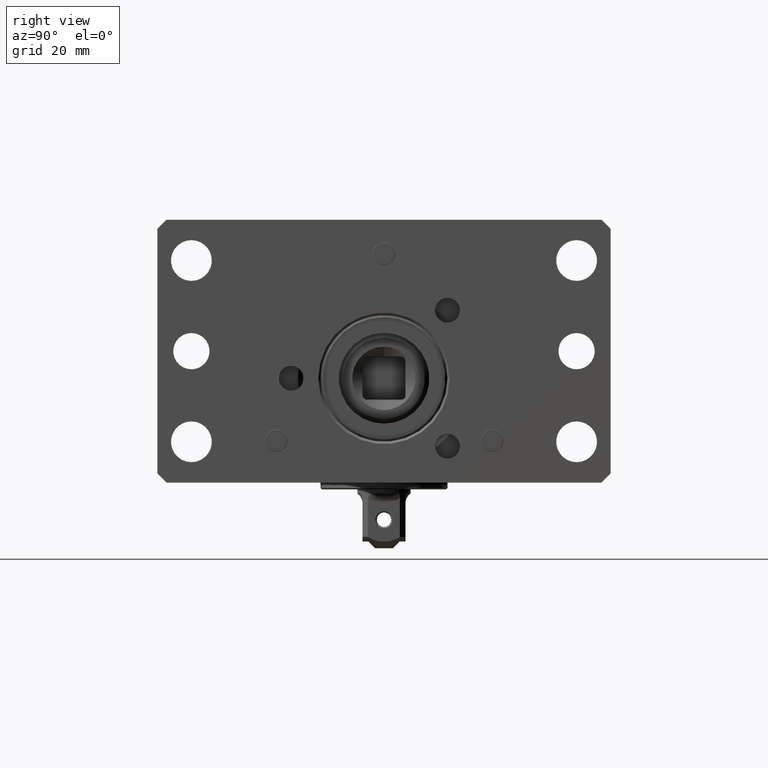
[diagram: clean part render]
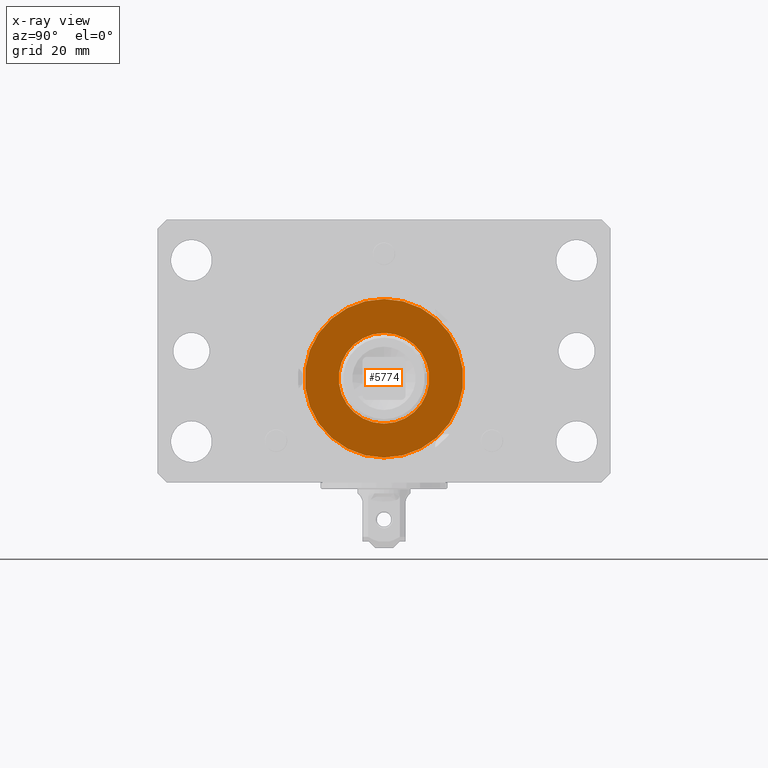
[diagram: x-ray — body ghosted, one internal face saturated and labeled with its STEP entity id]
A machine part, right view, then the same camera in x-ray: the body is ghosted and one INTERNAL B-rep face — a face not visible from any outside direction — is saturated and labeled: STEP entity #5774.
In plain terms, the highlighted planar face has unit normal (-1, 0, 0).
Its self-contained STEP definition (entity closure, byte-faithful):
#1051=FACE_BOUND('',#1705,.T.);
#1328=FACE_OUTER_BOUND('',#1704,.T.);
#1704=EDGE_LOOP('',(#5090));
#1705=EDGE_LOOP('',(#5091,#5092));
#2105=CIRCLE('',#6464,17.5);
#2108=CIRCLE('',#6468,10.);
#2109=CIRCLE('',#6469,10.);
#2679=VERTEX_POINT('',#10795);
#2682=VERTEX_POINT('',#10803);
#2683=VERTEX_POINT('',#10804);
#3506=EDGE_CURVE('',#2679,#2679,#2105,.T.);
#3510=EDGE_CURVE('',#2682,#2683,#2108,.T.);
#3511=EDGE_CURVE('',#2683,#2682,#2109,.T.);
#5090=ORIENTED_EDGE('',*,*,#3506,.F.);
#5091=ORIENTED_EDGE('',*,*,#3510,.F.);
#5092=ORIENTED_EDGE('',*,*,#3511,.F.);
#5491=PLANE('',#6467);
#5774=ADVANCED_FACE('',(#1328,#1051),#5491,.T.);
#6464=AXIS2_PLACEMENT_3D('',#10796,#8094,#8095);
#6467=AXIS2_PLACEMENT_3D('',#10802,#8101,#8102);
#6468=AXIS2_PLACEMENT_3D('',#10805,#8103,#8104);
#6469=AXIS2_PLACEMENT_3D('',#10806,#8105,#8106);
#8094=DIRECTION('center_axis',(1.,0.,-1.35308431126191E-15));
#8095=DIRECTION('ref_axis',(-1.35308431126191E-15,-2.84687916904366E-32,
-1.));
#8101=DIRECTION('center_axis',(-1.,0.,1.35308431126191E-15));
#8102=DIRECTION('ref_axis',(1.35308431126191E-15,2.84687916904366E-32,1.));
#8103=DIRECTION('center_axis',(-1.,0.,1.35308431126191E-15));
#8104=DIRECTION('ref_axis',(1.35308431126191E-15,2.84687916904366E-32,1.));
#8105=DIRECTION('center_axis',(-1.,0.,1.35308431126191E-15));
#8106=DIRECTION('ref_axis',(1.35308431126191E-15,2.84687916904366E-32,1.));
#10795=CARTESIAN_POINT('',(76.,5.66784750710273E-15,17.4999999999999));
#10796=CARTESIAN_POINT('Origin',(76.,7.8109794056106E-15,-1.02834407655905E-13));
#10802=CARTESIAN_POINT('Origin',(76.,7.8109794056106E-15,9.9999999999999));
#10803=CARTESIAN_POINT('',(76.,7.8109794056106E-15,9.9999999999999));
#10804=CARTESIAN_POINT('',(76.,6.58633260646324E-15,-10.0000000000001));
#10805=CARTESIAN_POINT('Origin',(76.,7.8109794056106E-15,-1.02834407655905E-13));
#10806=CARTESIAN_POINT('Origin',(76.,7.8109794056106E-15,-1.02834407655905E-13));